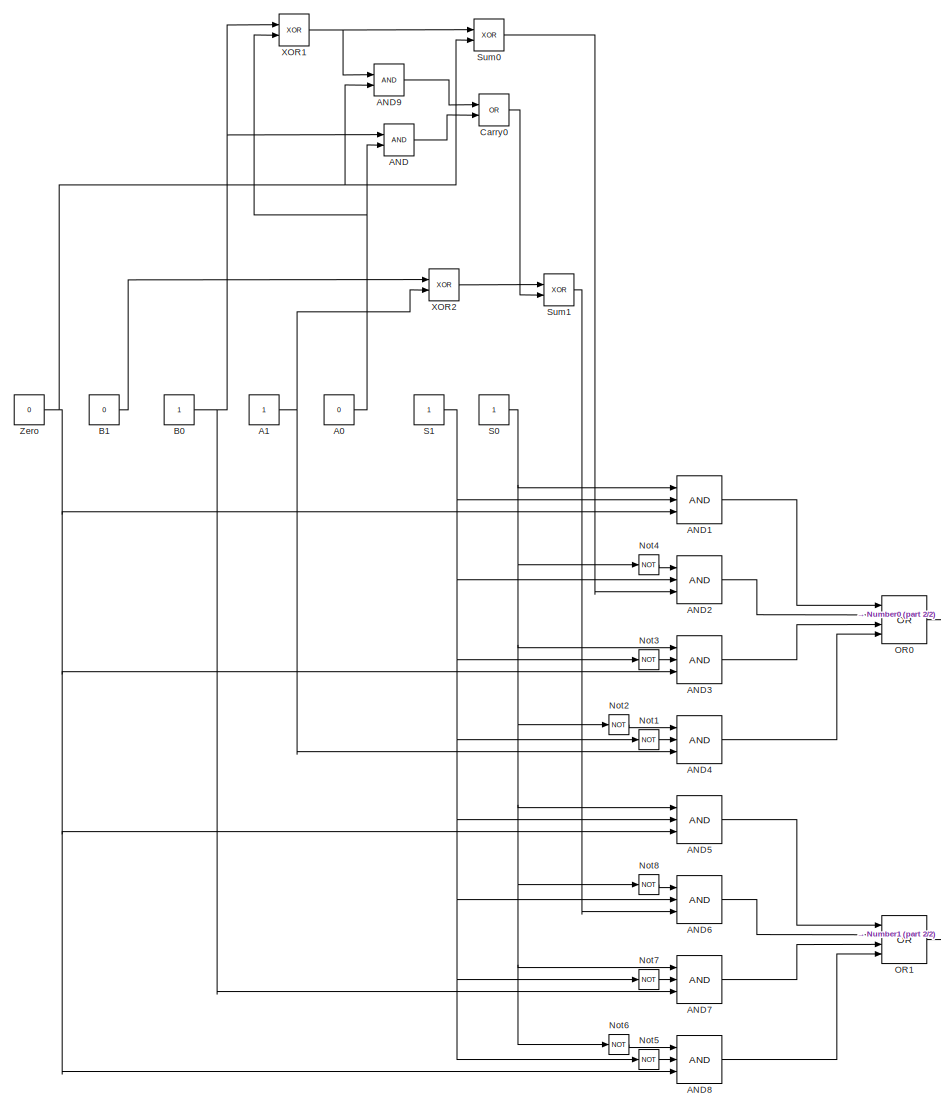
[diagram: root canvas - part 1/2, most of the canvas]
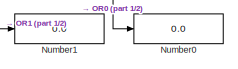
[diagram: root canvas - part 2/2, bottom right region]
MODEL slx_ed921e6d3c58
KIND model
CONFIG AbsTol = auto
CONFIG FixedStep = auto
CONFIG MaxStep = auto
CONFIG MinStep = auto
CONFIG RelTol = 1e-3
CONFIG SampleTimeConstraint = Unconstrained
CONFIG Solver = VariableStepAuto
CONFIG SolverMode = Auto
CONFIG SolverName = VariableStepAuto
CONFIG StartTime = 0.0
CONFIG StopTime = 10.0
BLOCK [Constant] A0
  OutDataTypeStr = boolean
  Value = 0
BLOCK [Constant] A1
  OutDataTypeStr = boolean
BLOCK [Logic] AND
  AllPortsSameDT = off
  IconShape = distinctive
  OutDataTypeStr = boolean
  Ports = [2, 1]
BLOCK [Logic] AND1
  AllPortsSameDT = off
  IconShape = distinctive
  Inputs = 3
  OutDataTypeStr = boolean
  Ports = [3, 1]
BLOCK [Logic] AND2
  AllPortsSameDT = off
  IconShape = distinctive
  Inputs = 3
  OutDataTypeStr = boolean
  Ports = [3, 1]
BLOCK [Logic] AND3
  AllPortsSameDT = off
  IconShape = distinctive
  Inputs = 3
  OutDataTypeStr = boolean
  Ports = [3, 1]
BLOCK [Logic] AND4
  AllPortsSameDT = off
  IconShape = distinctive
  Inputs = 3
  OutDataTypeStr = boolean
  Ports = [3, 1]
BLOCK [Logic] AND5
  AllPortsSameDT = off
  IconShape = distinctive
  Inputs = 3
  OutDataTypeStr = boolean
  Ports = [3, 1]
BLOCK [Logic] AND6
  AllPortsSameDT = off
  IconShape = distinctive
  Inputs = 3
  OutDataTypeStr = boolean
  Ports = [3, 1]
BLOCK [Logic] AND7
  AllPortsSameDT = off
  IconShape = distinctive
  Inputs = 3
  OutDataTypeStr = boolean
  Ports = [3, 1]
BLOCK [Logic] AND8
  AllPortsSameDT = off
  IconShape = distinctive
  Inputs = 3
  OutDataTypeStr = boolean
  Ports = [3, 1]
BLOCK [Logic] AND9
  AllPortsSameDT = off
  IconShape = distinctive
  OutDataTypeStr = boolean
  Ports = [2, 1]
BLOCK [Constant] B0
  OutDataTypeStr = boolean
BLOCK [Constant] B1
  OutDataTypeStr = boolean
  Value = 0
BLOCK [Logic] Carry0 
  AllPortsSameDT = off
  IconShape = distinctive
  Operator = OR
  OutDataTypeStr = boolean
  Ports = [2, 1]
BLOCK [Logic] Not1
  AllPortsSameDT = off
  IconShape = distinctive
  Inputs = 3
  Operator = NOT
  OutDataTypeStr = boolean
  Ports = [1, 1]
BLOCK [Logic] Not2
  AllPortsSameDT = off
  IconShape = distinctive
  Inputs = 3
  Operator = NOT
  OutDataTypeStr = boolean
  Ports = [1, 1]
BLOCK [Logic] Not3
  AllPortsSameDT = off
  IconShape = distinctive
  Inputs = 3
  Operator = NOT
  OutDataTypeStr = boolean
  Ports = [1, 1]
BLOCK [Logic] Not4
  AllPortsSameDT = off
  IconShape = distinctive
  Inputs = 3
  Operator = NOT
  OutDataTypeStr = boolean
  Ports = [1, 1]
BLOCK [Logic] Not5
  AllPortsSameDT = off
  IconShape = distinctive
  Inputs = 3
  Operator = NOT
  OutDataTypeStr = boolean
  Ports = [1, 1]
BLOCK [Logic] Not6
  AllPortsSameDT = off
  IconShape = distinctive
  Inputs = 3
  Operator = NOT
  OutDataTypeStr = boolean
  Ports = [1, 1]
BLOCK [Logic] Not7
  AllPortsSameDT = off
  IconShape = distinctive
  Inputs = 3
  Operator = NOT
  OutDataTypeStr = boolean
  Ports = [1, 1]
BLOCK [Logic] Not8
  AllPortsSameDT = off
  IconShape = distinctive
  Inputs = 3
  Operator = NOT
  OutDataTypeStr = boolean
  Ports = [1, 1]
BLOCK [Display] Number0
  Decimation = 1
  Ports = [1]
BLOCK [Display] Number1
  Decimation = 1
  Ports = [1]
BLOCK [Logic] OR0
  AllPortsSameDT = off
  IconShape = distinctive
  Inputs = 4
  Operator = OR
  OutDataTypeStr = boolean
  Ports = [4, 1]
BLOCK [Logic] OR1
  AllPortsSameDT = off
  IconShape = distinctive
  Inputs = 4
  Operator = OR
  OutDataTypeStr = boolean
  Ports = [4, 1]
BLOCK [Constant] S0
  OutDataTypeStr = boolean
BLOCK [Constant] S1
  OutDataTypeStr = boolean
BLOCK [Logic] Sum0
  AllPortsSameDT = off
  IconShape = distinctive
  Operator = XOR
  OutDataTypeStr = boolean
  Ports = [2, 1]
BLOCK [Logic] Sum1
  AllPortsSameDT = off
  IconShape = distinctive
  Operator = XOR
  OutDataTypeStr = boolean
  Ports = [2, 1]
BLOCK [Logic] XOR1
  AllPortsSameDT = off
  IconShape = distinctive
  Operator = XOR
  OutDataTypeStr = boolean
  Ports = [2, 1]
BLOCK [Logic] XOR2
  AllPortsSameDT = off
  IconShape = distinctive
  Operator = XOR
  OutDataTypeStr = boolean
  Ports = [2, 1]
BLOCK [Constant] Zero
  OutDataTypeStr = boolean
  Value = 0
NET A0:1 -> AND:2, XOR1:2
NET A1:1 -> AND4:3, XOR2:2
LINE AND1:1 -> OR0:1
LINE AND2:1 -> OR0:2
LINE AND3:1 -> OR0:3
LINE AND4:1 -> OR0:4
LINE AND5:1 -> OR1:1
LINE AND6:1 -> OR1:2
LINE AND7:1 -> OR1:3
LINE AND8:1 -> OR1:4
LINE AND9:1 -> Carry0 :1
LINE AND:1 -> Carry0 :2
NET B0:1 -> AND7:3, AND:1, XOR1:1
LINE B1:1 -> XOR2:1
LINE Carry0 :1 -> Sum1:2
LINE Not1:1 -> AND4:2
LINE Not2:1 -> AND4:1
LINE Not3:1 -> AND3:2
LINE Not4:1 -> AND2:1
LINE Not5:1 -> AND8:2
LINE Not6:1 -> AND8:1
LINE Not7:1 -> AND7:2
LINE Not8:1 -> AND6:1
LINE OR0:1 -> Number0:1
LINE OR1:1 -> Number1:1
NET S0:1 -> AND1:1, AND3:1, AND5:1, AND7:1, Not2:1, Not4:1, Not6:1, Not8:1
NET S1:1 -> AND1:2, AND2:2, AND5:2, AND6:2, Not1:1, Not3:1, Not5:1, Not7:1
LINE Sum0:1 -> AND2:3
LINE Sum1:1 -> AND6:3
NET XOR1:1 -> AND9:1, Sum0:1
LINE XOR2:1 -> Sum1:1
NET Zero:1 -> AND1:3, AND3:3, AND5:3, AND8:3, AND9:2, Sum0:2
note: NET lines group one-source signal fan-out (src -> all destinations, sorted); 1:1 wires keep LINE
